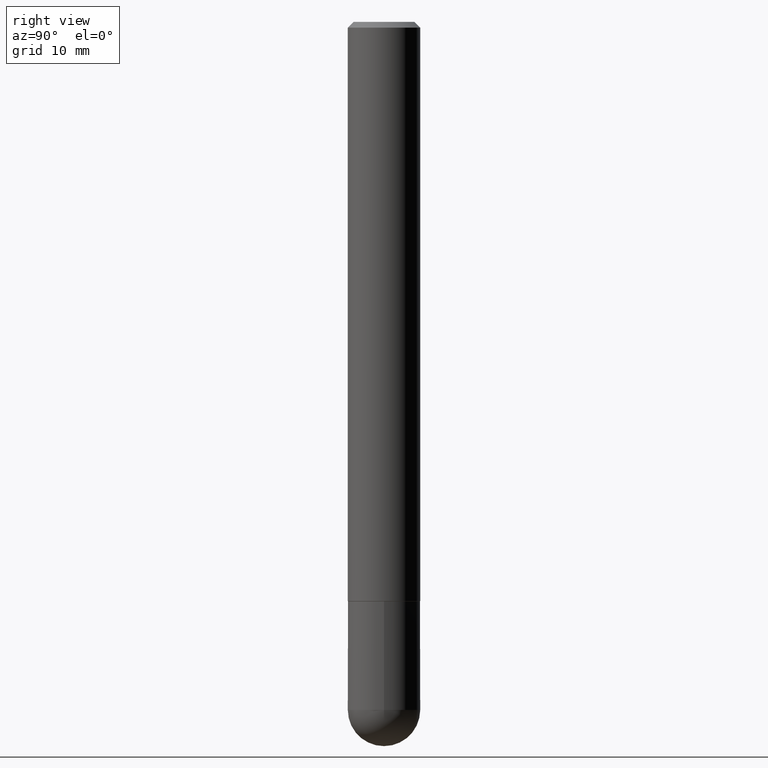
[diagram: clean part render]
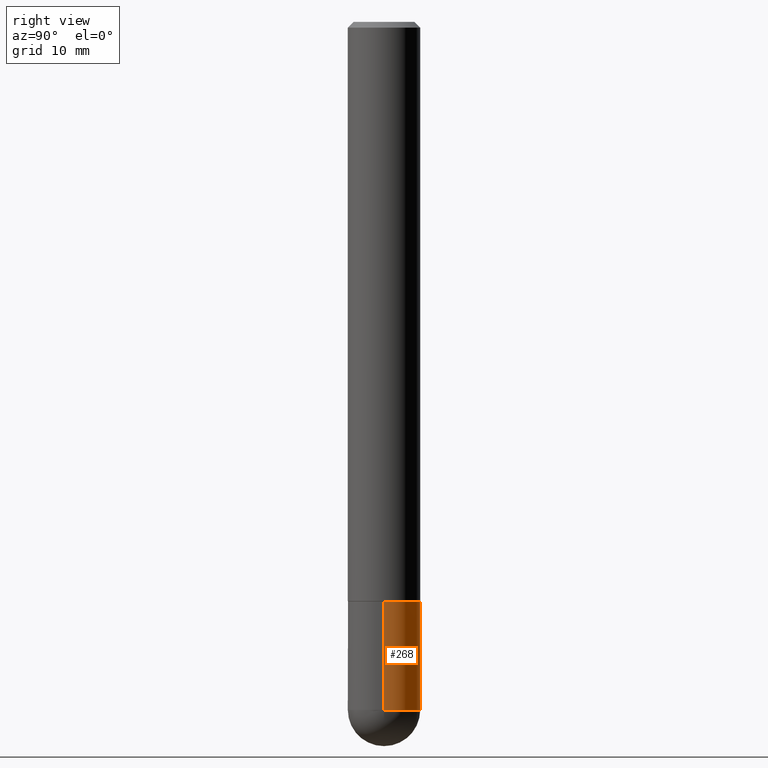
[diagram: same view with one face highlighted and labeled with its STEP entity id]
A machine part, right view. The second image highlights one B-rep face of the part: STEP entity #268.
In plain terms, the highlighted cylindrical surface (edge-blend (fillet) strip) has radius 3.175 mm, axis along (-0, 0, 1).
Its self-contained STEP definition (entity closure, byte-faithful):
#17 = ORIENTED_EDGE ( 'NONE', *, *, #316, .T. ) ;
#29 = CIRCLE ( 'NONE', #328, 0.1250000000000000278 ) ;
#37 = CARTESIAN_POINT ( 'NONE',  ( 4.890937612370273194E-29, -6.982962677686291165E-15, -2.000000000000000000 ) ) ;
#56 = CARTESIAN_POINT ( 'NONE',  ( -0.1250000000000000278, 8.881784197001254296E-16, -6.148668862818634329E-30 ) ) ;
#57 = LINE ( 'NONE', #56, #334 ) ;
#61 = VERTEX_POINT ( 'NONE', #222 ) ;
#75 = CARTESIAN_POINT ( 'NONE',  ( 0.000000000000000000, 0.000000000000000000, 0.000000000000000000 ) ) ;
#86 = CARTESIAN_POINT ( 'NONE',  ( 5.807988414689698296E-29, -8.292268179752468540E-15, -2.374999999999999556 ) ) ;
#113 = VECTOR ( 'NONE', #212, 39.37007874015748143 ) ;
#118 = EDGE_CURVE ( 'NONE', #202, #255, #251, .T. ) ;
#125 = AXIS2_PLACEMENT_3D ( 'NONE', #395, #400, #137 ) ;
#134 = ORIENTED_EDGE ( 'NONE', *, *, #140, .T. ) ;
#137 = DIRECTION ( 'NONE',  ( 1.000000000000000000, -6.982962677686269077E-15, 0.000000000000000000 ) ) ;
#140 = EDGE_CURVE ( 'NONE', #202, #390, #253, .T. ) ;
#149 = DIRECTION ( 'NONE',  ( -2.445468806185136597E-29, 3.491481338843145583E-15, 1.000000000000000000 ) ) ;
#165 = ORIENTED_EDGE ( 'NONE', *, *, #118, .F. ) ;
#173 = DIRECTION ( 'NONE',  ( 1.000000000000000000, -6.982962677686269077E-15, 0.000000000000000000 ) ) ;
#183 = CARTESIAN_POINT ( 'NONE',  ( 0.1250000000000000278, -8.728703347107836346E-16, 6.095220969744921142E-30 ) ) ;
#188 = CARTESIAN_POINT ( 'NONE',  ( 0.1250000000000000278, -7.855833012397075293E-15, -2.000000000000000000 ) ) ;
#200 = VERTEX_POINT ( 'NONE', #274 ) ;
#202 = VERTEX_POINT ( 'NONE', #402 ) ;
#206 = DIRECTION ( 'NONE',  ( -2.445468806185136597E-29, 3.491481338843145583E-15, 1.000000000000000000 ) ) ;
#209 = CIRCLE ( 'NONE', #125, 0.1250000000000000278 ) ;
#212 = DIRECTION ( 'NONE',  ( -2.445468806185136877E-29, 3.491481338843145188E-15, 1.000000000000000000 ) ) ;
#221 = FACE_OUTER_BOUND ( 'NONE', #256, .T. ) ;
#222 = CARTESIAN_POINT ( 'NONE',  ( -0.1250000000000000278, -6.749437009019255015E-15, -2.000000000000000000 ) ) ;
#227 = AXIS2_PLACEMENT_3D ( 'NONE', #75, #206, #296 ) ;
#234 = CYLINDRICAL_SURFACE ( 'NONE', #227, 0.1250000000000000278 ) ;
#237 = EDGE_CURVE ( 'NONE', #200, #61, #57, .T. ) ;
#251 = LINE ( 'NONE', #183, #113 ) ;
#253 = CIRCLE ( 'NONE', #350, 0.1250000000000000278 ) ;
#255 = VERTEX_POINT ( 'NONE', #188 ) ;
#256 = EDGE_LOOP ( 'NONE', ( #17, #293, #303, #165, #134 ) ) ;
#268 = ADVANCED_FACE ( 'NONE', ( #221 ), #234, .T. ) ;
#272 = EDGE_CURVE ( 'NONE', #255, #61, #29, .T. ) ;
#274 = CARTESIAN_POINT ( 'NONE',  ( -0.1250000000000000278, -6.749437009019255804E-15, -2.374999999999999556 ) ) ;
#293 = ORIENTED_EDGE ( 'NONE', *, *, #237, .T. ) ;
#296 = DIRECTION ( 'NONE',  ( 1.000000000000000000, -6.982962677686267499E-15, 4.876176775795935793E-29 ) ) ;
#297 = DIRECTION ( 'NONE',  ( -2.445468806185136597E-29, 3.491481338843145583E-15, 1.000000000000000000 ) ) ;
#302 = CARTESIAN_POINT ( 'NONE',  ( 8.728703347108405312E-16, 0.1249999999999916039, -2.375000000000000000 ) ) ;
#303 = ORIENTED_EDGE ( 'NONE', *, *, #272, .F. ) ;
#304 = DIRECTION ( 'NONE',  ( 1.000000000000000000, -6.982962677686269077E-15, 0.000000000000000000 ) ) ;
#316 = EDGE_CURVE ( 'NONE', #390, #200, #209, .T. ) ;
#328 = AXIS2_PLACEMENT_3D ( 'NONE', #37, #297, #173 ) ;
#334 = VECTOR ( 'NONE', #407, 39.37007874015748143 ) ;
#350 = AXIS2_PLACEMENT_3D ( 'NONE', #86, #149, #304 ) ;
#390 = VERTEX_POINT ( 'NONE', #302 ) ;
#395 = CARTESIAN_POINT ( 'NONE',  ( 5.807988414689698296E-29, -8.292268179752468540E-15, -2.374999999999999556 ) ) ;
#400 = DIRECTION ( 'NONE',  ( -2.445468806185136597E-29, 3.491481338843145583E-15, 1.000000000000000000 ) ) ;
#402 = CARTESIAN_POINT ( 'NONE',  ( 0.1250000000000000278, -8.510485763430165164E-15, -2.374999999999999556 ) ) ;
#407 = DIRECTION ( 'NONE',  ( -2.445468806185136877E-29, 3.491481338843145188E-15, 1.000000000000000000 ) ) ;